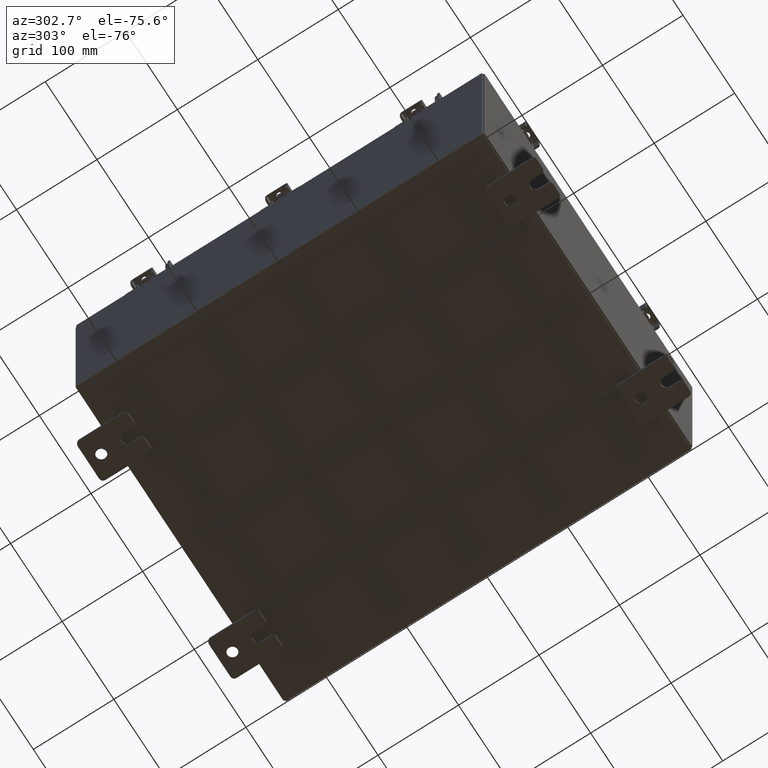
[diagram: clean part render]
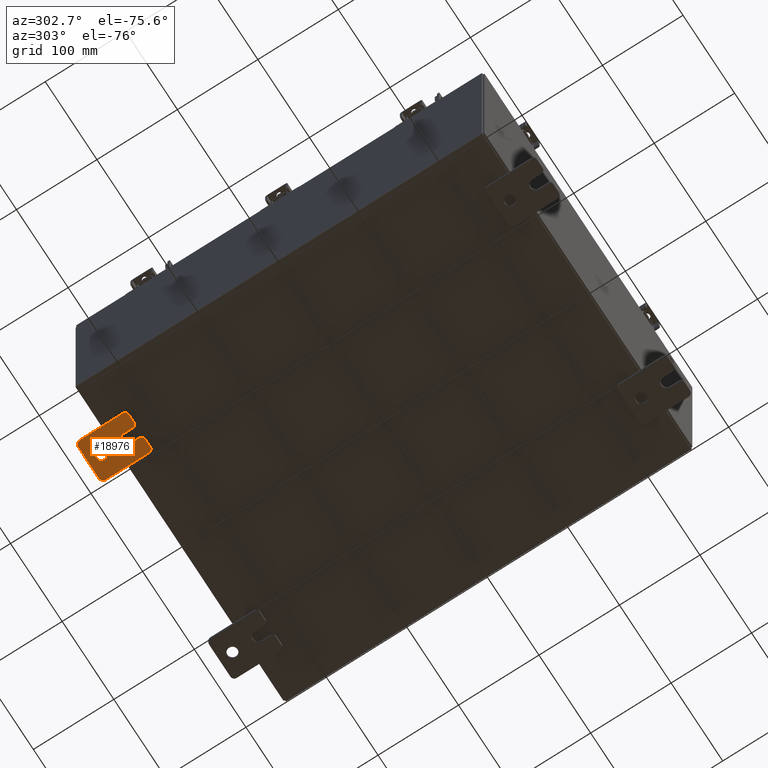
[diagram: same view with one face highlighted and labeled with its STEP entity id]
A machine part, auxiliary view. The second image highlights one B-rep face of the part: STEP entity #18976.
In plain terms, the highlighted planar face has unit normal (0, 0, 1).
Its self-contained STEP definition (entity closure, byte-faithful):
#41 = CARTESIAN_POINT ( 'NONE',  ( -0.1880000000000004700, -1.060000000000002300, 0.2499999999999998100 ) ) ;
#147 = EDGE_CURVE ( 'NONE', #20722, #1153, #13481, .T. ) ;
#276 = FACE_BOUND ( 'NONE', #18312, .T. ) ;
#302 = EDGE_CURVE ( 'NONE', #17284, #3454, #15379, .T. ) ;
#439 = CARTESIAN_POINT ( 'NONE',  ( -0.1880000000000001900, -0.6249999999999988900, 0.0000000000000000000 ) ) ;
#690 = DIRECTION ( 'NONE',  ( 1.000000000000000000, 0.0000000000000000000, 0.0000000000000000000 ) ) ;
#721 = DIRECTION ( 'NONE',  ( 0.0000000000000000000, 0.0000000000000000000, -1.000000000000000000 ) ) ;
#754 = DIRECTION ( 'NONE',  ( 0.0000000000000000000, -1.639108796198553600E-015, -1.000000000000000000 ) ) ;
#765 = AXIS2_PLACEMENT_3D ( 'NONE', #7084, #21972, #12568 ) ;
#870 = EDGE_CURVE ( 'NONE', #15398, #4914, #20536, .T. ) ;
#886 = LINE ( 'NONE', #9914, #18834 ) ;
#1039 = LINE ( 'NONE', #21579, #10270 ) ;
#1153 = VERTEX_POINT ( 'NONE', #4138 ) ;
#1285 = CARTESIAN_POINT ( 'NONE',  ( -0.1879999999999997800, -1.250000000000002200, 0.8099999999999981700 ) ) ;
#1404 = VECTOR ( 'NONE', #7091, 39.37007874015748100 ) ;
#1426 = CARTESIAN_POINT ( 'NONE',  ( -0.1879999999999997800, 1.059999999999993600, -1.000000000000010000 ) ) ;
#1459 = CARTESIAN_POINT ( 'NONE',  ( -0.1879999999999997800, -1.060000000000000300, 0.8099999999999981700 ) ) ;
#1773 = CARTESIAN_POINT ( 'NONE',  ( -0.1880000000000010000, 0.6249999999999988900, 0.0000000000000000000 ) ) ;
#1933 = ORIENTED_EDGE ( 'NONE', *, *, #12863, .F. ) ;
#1981 = CARTESIAN_POINT ( 'NONE',  ( -0.1879999999999997800, 1.059999999999995800, 0.9999999999999958900 ) ) ;
#2383 = VERTEX_POINT ( 'NONE', #19200 ) ;
#2863 = CARTESIAN_POINT ( 'NONE',  ( -0.1880000000000001900, -0.6249999999999988900, 0.2499999999999998100 ) ) ;
#2925 = CARTESIAN_POINT ( 'NONE',  ( -0.1879999999999997800, -1.250000000000004400, -0.8100000000000047200 ) ) ;
#3045 = LINE ( 'NONE', #9321, #12283 ) ;
#3277 = EDGE_LOOP ( 'NONE', ( #15026, #5321, #8027, #13454, #15487, #15344, #21397, #4989, #1933, #12914, #20972, #5561, #20050, #3606 ) ) ;
#3382 = CARTESIAN_POINT ( 'NONE',  ( -0.1880000000000001900, -0.6249999999999988900, -0.2499999999999998100 ) ) ;
#3416 = AXIS2_PLACEMENT_3D ( 'NONE', #439, #19879, #19585 ) ;
#3454 = VERTEX_POINT ( 'NONE', #1426 ) ;
#3527 = DIRECTION ( 'NONE',  ( 0.0000000000000000000, 0.0000000000000000000, -1.000000000000000000 ) ) ;
#3606 = ORIENTED_EDGE ( 'NONE', *, *, #147, .T. ) ;
#3658 = ORIENTED_EDGE ( 'NONE', *, *, #16196, .T. ) ;
#3728 = AXIS2_PLACEMENT_3D ( 'NONE', #17606, #7170, #19344 ) ;
#3805 = LINE ( 'NONE', #5812, #21731 ) ;
#3824 = FACE_OUTER_BOUND ( 'NONE', #3277, .T. ) ;
#3881 = LINE ( 'NONE', #4934, #7931 ) ;
#4063 = DIRECTION ( 'NONE',  ( 0.0000000000000000000, -1.000000000000000000, 1.639108796198558100E-015 ) ) ;
#4138 = CARTESIAN_POINT ( 'NONE',  ( -0.1879999999999997800, -1.250000000000004400, 0.4400000000000018900 ) ) ;
#4914 = VERTEX_POINT ( 'NONE', #3382 ) ;
#4934 = CARTESIAN_POINT ( 'NONE',  ( -0.1880000000000005800, -1.250000000000004400, 0.2499999999999998100 ) ) ;
#4989 = ORIENTED_EDGE ( 'NONE', *, *, #10034, .T. ) ;
#5048 = CARTESIAN_POINT ( 'NONE',  ( -0.1879999999999997800, 1.249999999999995800, -0.8100000000000091600 ) ) ;
#5125 = CARTESIAN_POINT ( 'NONE',  ( -0.1879999999999997800, -1.060000000000002300, 0.4400000000000018900 ) ) ;
#5321 = ORIENTED_EDGE ( 'NONE', *, *, #5699, .T. ) ;
#5552 = VERTEX_POINT ( 'NONE', #5674 ) ;
#5561 = ORIENTED_EDGE ( 'NONE', *, *, #870, .F. ) ;
#5674 = CARTESIAN_POINT ( 'NONE',  ( -0.1879999999999997800, -1.060000000000004500, -1.000000000000006900 ) ) ;
#5699 = EDGE_CURVE ( 'NONE', #7383, #15967, #22216, .T. ) ;
#5812 = CARTESIAN_POINT ( 'NONE',  ( -0.1879999999999997800, 1.249999999999997800, 0.9999999999999947800 ) ) ;
#5873 = PLANE ( 'NONE',  #14198 ) ;
#5938 = CIRCLE ( 'NONE', #21215, 0.2499999999999999200 ) ;
#6039 = LINE ( 'NONE', #12272, #1404 ) ;
#6109 = CIRCLE ( 'NONE', #11014, 0.2499999999999999200 ) ;
#6205 = DIRECTION ( 'NONE',  ( 0.0000000000000000000, 1.000000000000000000, -1.639108796198558100E-015 ) ) ;
#6694 = CARTESIAN_POINT ( 'NONE',  ( -0.1880000000000010000, 0.6249999999999988900, 0.0000000000000000000 ) ) ;
#7084 = CARTESIAN_POINT ( 'NONE',  ( -0.1879999999999997800, 1.059999999999993600, -0.8100000000000091600 ) ) ;
#7091 = DIRECTION ( 'NONE',  ( 0.0000000000000000000, 1.639108796198553600E-015, 1.000000000000000000 ) ) ;
#7170 = DIRECTION ( 'NONE',  ( -1.000000000000000000, -0.0000000000000000000, -0.0000000000000000000 ) ) ;
#7383 = VERTEX_POINT ( 'NONE', #1285 ) ;
#7518 = CARTESIAN_POINT ( 'NONE',  ( -0.1879999999999997800, 0.0000000000000000000, 0.0000000000000000000 ) ) ;
#7931 = VECTOR ( 'NONE', #8396, 39.37007874015748100 ) ;
#8027 = ORIENTED_EDGE ( 'NONE', *, *, #19551, .F. ) ;
#8199 = ORIENTED_EDGE ( 'NONE', *, *, #21356, .T. ) ;
#8396 = DIRECTION ( 'NONE',  ( 6.556435184794182400E-016, 1.000000000000000000, 0.0000000000000000000 ) ) ;
#8435 = DIRECTION ( 'NONE',  ( 0.0000000000000000000, 0.0000000000000000000, -1.000000000000000000 ) ) ;
#9099 = CIRCLE ( 'NONE', #13451, 0.1900000000000011100 ) ;
#9310 = CIRCLE ( 'NONE', #18970, 0.1900000000000011100 ) ;
#9321 = CARTESIAN_POINT ( 'NONE',  ( -0.1880000000000001900, -0.6249999999999988900, -0.2499999999999998100 ) ) ;
#9449 = AXIS2_PLACEMENT_3D ( 'NONE', #1459, #20935, #10513 ) ;
#9914 = CARTESIAN_POINT ( 'NONE',  ( -0.1879999999999997800, -1.250000000000002200, 0.9999999999999992200 ) ) ;
#9926 = DIRECTION ( 'NONE',  ( -1.000000000000000000, -0.0000000000000000000, -0.0000000000000000000 ) ) ;
#10034 = EDGE_CURVE ( 'NONE', #5552, #10703, #9310, .T. ) ;
#10270 = VECTOR ( 'NONE', #754, 39.37007874015748100 ) ;
#10365 = VERTEX_POINT ( 'NONE', #21242 ) ;
#10369 = VERTEX_POINT ( 'NONE', #17761 ) ;
#10513 = DIRECTION ( 'NONE',  ( 0.0000000000000000000, 0.0000000000000000000, -1.000000000000000000 ) ) ;
#10582 = CARTESIAN_POINT ( 'NONE',  ( -0.1880000000000010000, 0.6249999999999988900, 0.2499999999999999200 ) ) ;
#10703 = VERTEX_POINT ( 'NONE', #2925 ) ;
#11014 = AXIS2_PLACEMENT_3D ( 'NONE', #6694, #18870, #8435 ) ;
#11104 = DIRECTION ( 'NONE',  ( -1.000000000000000000, -0.0000000000000000000, -0.0000000000000000000 ) ) ;
#11951 = EDGE_CURVE ( 'NONE', #17284, #18533, #6039, .T. ) ;
#12272 = CARTESIAN_POINT ( 'NONE',  ( -0.1879999999999997800, 1.249999999999993600, -1.000000000000010000 ) ) ;
#12283 = VECTOR ( 'NONE', #21478, 39.37007874015748100 ) ;
#12568 = DIRECTION ( 'NONE',  ( 0.0000000000000000000, 0.0000000000000000000, -1.000000000000000000 ) ) ;
#12726 = EDGE_CURVE ( 'NONE', #5552, #3454, #16402, .T. ) ;
#12829 = DIRECTION ( 'NONE',  ( -1.000000000000000000, -0.0000000000000000000, -0.0000000000000000000 ) ) ;
#12852 = DIRECTION ( 'NONE',  ( 0.0000000000000000000, 0.0000000000000000000, -1.000000000000000000 ) ) ;
#12858 = AXIS2_PLACEMENT_3D ( 'NONE', #5125, #12829, #14587 ) ;
#12863 = EDGE_CURVE ( 'NONE', #10365, #10703, #886, .T. ) ;
#12914 = ORIENTED_EDGE ( 'NONE', *, *, #16324, .T. ) ;
#12979 = EDGE_CURVE ( 'NONE', #20722, #15398, #3881, .T. ) ;
#13128 = EDGE_CURVE ( 'NONE', #18797, #18533, #19099, .T. ) ;
#13268 = EDGE_CURVE ( 'NONE', #4914, #10369, #3045, .T. ) ;
#13451 = AXIS2_PLACEMENT_3D ( 'NONE', #21532, #11104, #721 ) ;
#13454 = ORIENTED_EDGE ( 'NONE', *, *, #13128, .T. ) ;
#13481 = CIRCLE ( 'NONE', #12858, 0.1900000000000011400 ) ;
#13931 = DIRECTION ( 'NONE',  ( 1.000000000000000000, 0.0000000000000000000, -5.163192708025532000E-017 ) ) ;
#14198 = AXIS2_PLACEMENT_3D ( 'NONE', #7518, #690, #12852 ) ;
#14587 = DIRECTION ( 'NONE',  ( 0.0000000000000000000, 0.0000000000000000000, -1.000000000000000000 ) ) ;
#14784 = CARTESIAN_POINT ( 'NONE',  ( -0.1879999999999997800, -1.060000000000000300, 0.9999999999999992200 ) ) ;
#15026 = ORIENTED_EDGE ( 'NONE', *, *, #20281, .F. ) ;
#15165 = CARTESIAN_POINT ( 'NONE',  ( -0.1879999999999997800, 1.249999999999997800, 0.8099999999999938400 ) ) ;
#15344 = ORIENTED_EDGE ( 'NONE', *, *, #302, .T. ) ;
#15379 = CIRCLE ( 'NONE', #765, 0.1900000000000011100 ) ;
#15398 = VERTEX_POINT ( 'NONE', #2863 ) ;
#15487 = ORIENTED_EDGE ( 'NONE', *, *, #11951, .F. ) ;
#15967 = VERTEX_POINT ( 'NONE', #14784 ) ;
#16196 = EDGE_CURVE ( 'NONE', #2383, #18072, #6109, .T. ) ;
#16324 = EDGE_CURVE ( 'NONE', #10365, #10369, #9099, .T. ) ;
#16402 = LINE ( 'NONE', #16625, #21003 ) ;
#16625 = CARTESIAN_POINT ( 'NONE',  ( -0.1879999999999997800, -1.250000000000004400, -1.000000000000006900 ) ) ;
#17284 = VERTEX_POINT ( 'NONE', #5048 ) ;
#17606 = CARTESIAN_POINT ( 'NONE',  ( -0.1879999999999997800, 1.059999999999995800, 0.8099999999999938400 ) ) ;
#17761 = CARTESIAN_POINT ( 'NONE',  ( -0.1880000000000004700, -1.060000000000004500, -0.2499999999999998100 ) ) ;
#18072 = VERTEX_POINT ( 'NONE', #10582 ) ;
#18312 = EDGE_LOOP ( 'NONE', ( #3658, #8199 ) ) ;
#18533 = VERTEX_POINT ( 'NONE', #15165 ) ;
#18797 = VERTEX_POINT ( 'NONE', #1981 ) ;
#18834 = VECTOR ( 'NONE', #20342, 39.37007874015748100 ) ;
#18870 = DIRECTION ( 'NONE',  ( 1.000000000000000000, 0.0000000000000000000, -5.163192708025532000E-017 ) ) ;
#18970 = AXIS2_PLACEMENT_3D ( 'NONE', #20356, #9926, #22087 ) ;
#18976 = ADVANCED_FACE ( 'NONE', ( #276, #3824 ), #5873, .F. ) ;
#19099 = CIRCLE ( 'NONE', #3728, 0.1900000000000011100 ) ;
#19200 = CARTESIAN_POINT ( 'NONE',  ( -0.1880000000000010000, 0.6249999999999988900, -0.2499999999999999200 ) ) ;
#19344 = DIRECTION ( 'NONE',  ( 0.0000000000000000000, 0.0000000000000000000, -1.000000000000000000 ) ) ;
#19551 = EDGE_CURVE ( 'NONE', #18797, #15967, #3805, .T. ) ;
#19585 = DIRECTION ( 'NONE',  ( -6.829619984160660000E-016, -1.000000000000000000, 0.0000000000000000000 ) ) ;
#19879 = DIRECTION ( 'NONE',  ( -1.000000000000000000, 6.523827964459549700E-016, 5.163192708025532000E-017 ) ) ;
#20050 = ORIENTED_EDGE ( 'NONE', *, *, #12979, .F. ) ;
#20281 = EDGE_CURVE ( 'NONE', #7383, #1153, #1039, .T. ) ;
#20342 = DIRECTION ( 'NONE',  ( 0.0000000000000000000, -1.639108796198553600E-015, -1.000000000000000000 ) ) ;
#20356 = CARTESIAN_POINT ( 'NONE',  ( -0.1879999999999997800, -1.060000000000004500, -0.8100000000000047200 ) ) ;
#20536 = CIRCLE ( 'NONE', #3416, 0.2499999999999999200 ) ;
#20722 = VERTEX_POINT ( 'NONE', #41 ) ;
#20935 = DIRECTION ( 'NONE',  ( -1.000000000000000000, -0.0000000000000000000, -0.0000000000000000000 ) ) ;
#20972 = ORIENTED_EDGE ( 'NONE', *, *, #13268, .F. ) ;
#21003 = VECTOR ( 'NONE', #6205, 39.37007874015748100 ) ;
#21215 = AXIS2_PLACEMENT_3D ( 'NONE', #1773, #13931, #3527 ) ;
#21242 = CARTESIAN_POINT ( 'NONE',  ( -0.1879999999999997800, -1.250000000000004400, -0.4399999999999996700 ) ) ;
#21356 = EDGE_CURVE ( 'NONE', #18072, #2383, #5938, .T. ) ;
#21397 = ORIENTED_EDGE ( 'NONE', *, *, #12726, .F. ) ;
#21478 = DIRECTION ( 'NONE',  ( -6.556435184794182400E-016, -1.000000000000000000, -1.639108796198545600E-016 ) ) ;
#21532 = CARTESIAN_POINT ( 'NONE',  ( -0.1879999999999997800, -1.060000000000004500, -0.4400000000000007800 ) ) ;
#21579 = CARTESIAN_POINT ( 'NONE',  ( -0.1879999999999997800, -1.250000000000002200, 0.9999999999999992200 ) ) ;
#21731 = VECTOR ( 'NONE', #4063, 39.37007874015748100 ) ;
#21972 = DIRECTION ( 'NONE',  ( -1.000000000000000000, -0.0000000000000000000, -0.0000000000000000000 ) ) ;
#22087 = DIRECTION ( 'NONE',  ( 0.0000000000000000000, 0.0000000000000000000, -1.000000000000000000 ) ) ;
#22216 = CIRCLE ( 'NONE', #9449, 0.1900000000000011100 ) ;